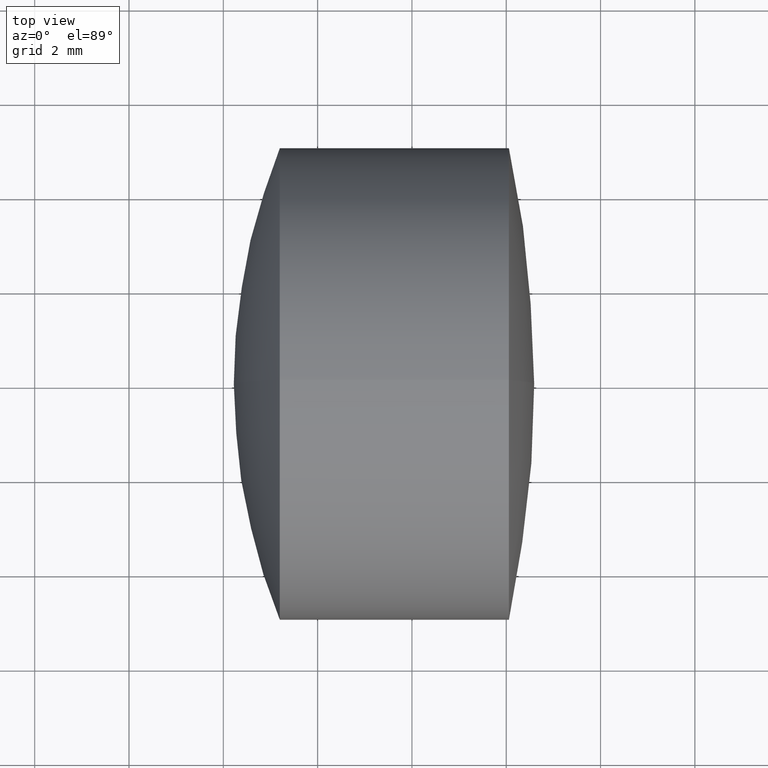
[diagram: clean part render]
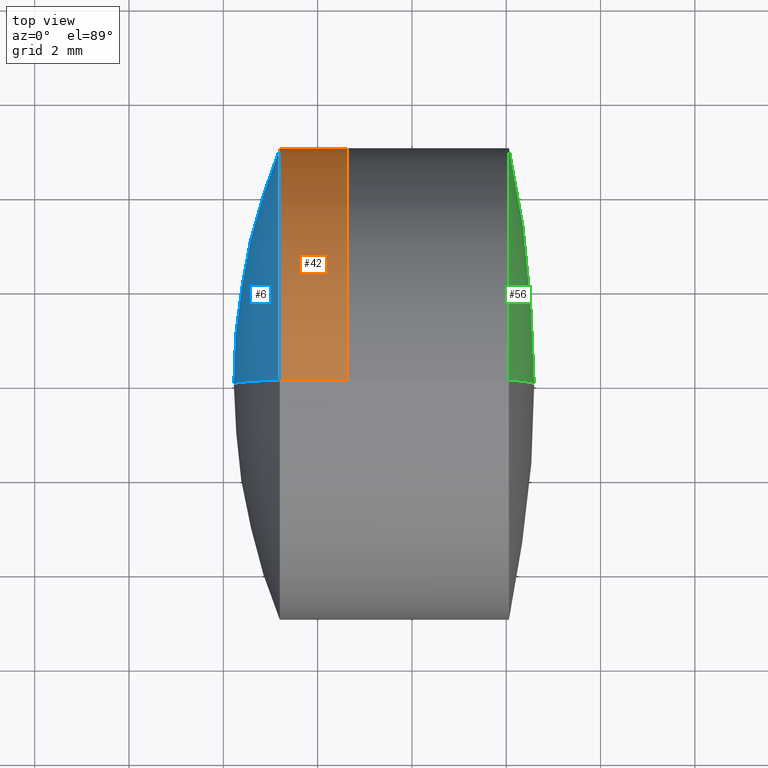
[diagram: same view with three faces highlighted in distinct colors, each labeled with its STEP entity id]
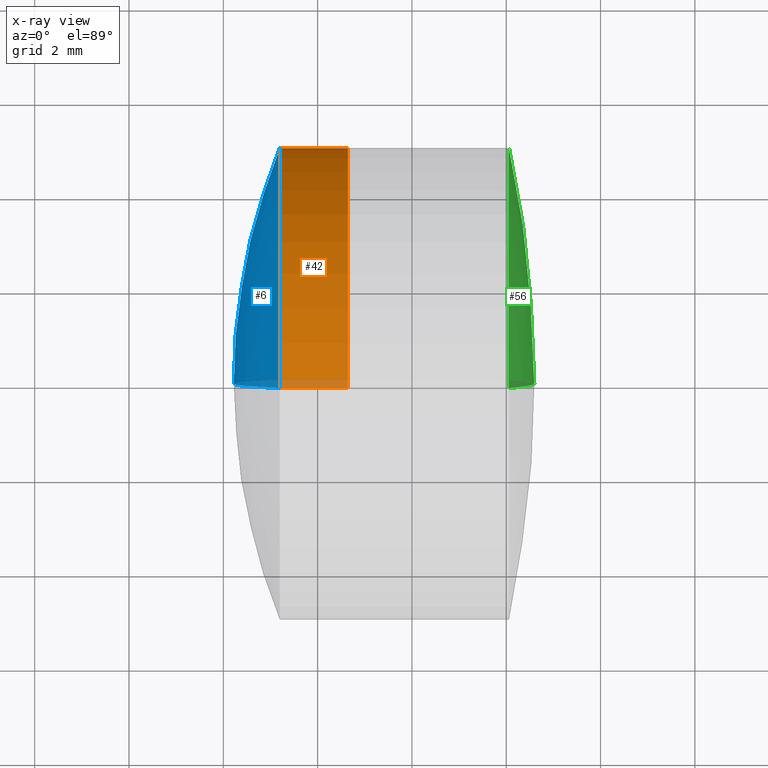
[diagram: x-ray of the same camera — body ghosted, the three highlighted faces saturated]
A machine part, top view with three faces highlighted in distinct colors.
The next image is the same camera in x-ray (body ghosted, the three faces saturated) — at least one of them is partly hidden behind the body in this view.
Their STEP definitions:

[orange] entity #42 — the highlighted cylindrical surface (partial cylindrical patch) has radius 5 mm, axis along (-1, -0, -0).
#3 = CIRCLE ( 'NONE', #311, 5.000000000000000000 ) ;
#7 = DIRECTION ( 'NONE',  ( 0.0000000000000000000, 0.0000000000000000000, 1.000000000000000000 ) ) ;
#20 = EDGE_CURVE ( 'NONE', #73, #54, #338, .T. ) ;
#27 = CARTESIAN_POINT ( 'NONE',  ( 0.6409706677806791300, 0.0000000000000000000, 0.0000000000000000000 ) ) ;
#31 = CARTESIAN_POINT ( 'NONE',  ( -0.8020328596320403000, 0.0000000000000000000, 0.0000000000000000000 ) ) ;
#35 = CARTESIAN_POINT ( 'NONE',  ( -0.8020328596320411800, 6.123233995736764300E-016, -4.999999999999999100 ) ) ;
#42 = ADVANCED_FACE ( 'NONE', ( #114 ), #166, .T. ) ;
#54 = VERTEX_POINT ( 'NONE', #35 ) ;
#73 = VERTEX_POINT ( 'NONE', #303 ) ;
#78 = DIRECTION ( 'NONE',  ( 0.0000000000000000000, 0.0000000000000000000, 1.000000000000000000 ) ) ;
#114 = FACE_OUTER_BOUND ( 'NONE', #342, .T. ) ;
#119 = DIRECTION ( 'NONE',  ( -1.000000000000000000, -0.0000000000000000000, -0.0000000000000000000 ) ) ;
#120 = EDGE_CURVE ( 'NONE', #224, #54, #3, .T. ) ;
#129 = VECTOR ( 'NONE', #215, 1000.000000000000000 ) ;
#163 = LINE ( 'NONE', #201, #312 ) ;
#165 = CARTESIAN_POINT ( 'NONE',  ( -9.702612178336682500, 6.123233995736766300E-016, -5.000000000000000000 ) ) ;
#166 = CYLINDRICAL_SURFACE ( 'NONE', #339, 5.000000000000000000 ) ;
#169 = ORIENTED_EDGE ( 'NONE', *, *, #202, .T. ) ;
#175 = DIRECTION ( 'NONE',  ( -1.000000000000000000, -0.0000000000000000000, -0.0000000000000000000 ) ) ;
#188 = DIRECTION ( 'NONE',  ( -1.000000000000000000, -0.0000000000000000000, -0.0000000000000000000 ) ) ;
#193 = CARTESIAN_POINT ( 'NONE',  ( -9.702612178336682500, 0.0000000000000000000, 0.0000000000000000000 ) ) ;
#201 = CARTESIAN_POINT ( 'NONE',  ( -9.702612178336682500, 0.0000000000000000000, 5.000000000000000000 ) ) ;
#202 = EDGE_CURVE ( 'NONE', #299, #73, #250, .T. ) ;
#205 = ORIENTED_EDGE ( 'NONE', *, *, #120, .F. ) ;
#215 = DIRECTION ( 'NONE',  ( -1.000000000000000000, -0.0000000000000000000, -0.0000000000000000000 ) ) ;
#221 = DIRECTION ( 'NONE',  ( 0.0000000000000000000, 0.0000000000000000000, 1.000000000000000000 ) ) ;
#222 = ORIENTED_EDGE ( 'NONE', *, *, #20, .T. ) ;
#224 = VERTEX_POINT ( 'NONE', #238 ) ;
#238 = CARTESIAN_POINT ( 'NONE',  ( -0.8020328596320411800, 0.0000000000000000000, 4.999999999999999100 ) ) ;
#250 = CIRCLE ( 'NONE', #293, 5.000000000000000000 ) ;
#257 = DIRECTION ( 'NONE',  ( -1.000000000000000000, -0.0000000000000000000, -0.0000000000000000000 ) ) ;
#262 = CARTESIAN_POINT ( 'NONE',  ( 0.6409706677806791300, 0.0000000000000000000, 5.000000000000000000 ) ) ;
#293 = AXIS2_PLACEMENT_3D ( 'NONE', #27, #257, #78 ) ;
#299 = VERTEX_POINT ( 'NONE', #262 ) ;
#303 = CARTESIAN_POINT ( 'NONE',  ( 0.6409706677806791300, 6.123233995736766300E-016, -5.000000000000000000 ) ) ;
#311 = AXIS2_PLACEMENT_3D ( 'NONE', #31, #188, #7 ) ;
#312 = VECTOR ( 'NONE', #175, 1000.000000000000000 ) ;
#317 = EDGE_CURVE ( 'NONE', #299, #224, #163, .T. ) ;
#326 = ORIENTED_EDGE ( 'NONE', *, *, #317, .F. ) ;
#338 = LINE ( 'NONE', #165, #129 ) ;
#339 = AXIS2_PLACEMENT_3D ( 'NONE', #193, #119, #221 ) ;
#342 = EDGE_LOOP ( 'NONE', ( #169, #222, #205, #326 ) ) ;

[blue] entity #6 — the highlighted spherical surface has radius 13.303 mm.
#3 = CIRCLE ( 'NONE', #311, 5.000000000000000000 ) ;
#4 = ORIENTED_EDGE ( 'NONE', *, *, #92, .F. ) ;
#6 = ADVANCED_FACE ( 'NONE', ( #63 ), #319, .T. ) ;
#7 = DIRECTION ( 'NONE',  ( 0.0000000000000000000, 0.0000000000000000000, 1.000000000000000000 ) ) ;
#31 = CARTESIAN_POINT ( 'NONE',  ( -0.8020328596320403000, 0.0000000000000000000, 0.0000000000000000000 ) ) ;
#33 = CIRCLE ( 'NONE', #228, 13.30299999999999900 ) ;
#34 = DIRECTION ( 'NONE',  ( 0.0000000000000000000, 0.0000000000000000000, -1.000000000000000000 ) ) ;
#35 = CARTESIAN_POINT ( 'NONE',  ( -0.8020328596320411800, 6.123233995736764300E-016, -4.999999999999999100 ) ) ;
#54 = VERTEX_POINT ( 'NONE', #35 ) ;
#57 = CARTESIAN_POINT ( 'NONE',  ( 11.52557067876908700, 0.0000000000000000000, -4.606281676806371000E-016 ) ) ;
#63 = FACE_OUTER_BOUND ( 'NONE', #142, .T. ) ;
#71 = CARTESIAN_POINT ( 'NONE',  ( 11.52557067876908700, 0.0000000000000000000, -4.606281676806371000E-016 ) ) ;
#72 = AXIS2_PLACEMENT_3D ( 'NONE', #331, #140, #306 ) ;
#92 = EDGE_CURVE ( 'NONE', #224, #285, #136, .T. ) ;
#102 = DIRECTION ( 'NONE',  ( 0.0000000000000000000, -1.224646799147353200E-016, 1.000000000000000000 ) ) ;
#120 = EDGE_CURVE ( 'NONE', #224, #54, #3, .T. ) ;
#126 = CARTESIAN_POINT ( 'NONE',  ( -1.777429321230912200, 0.0000000000000000000, 3.539456507722247700E-016 ) ) ;
#136 = CIRCLE ( 'NONE', #334, 13.30299999999999900 ) ;
#140 = DIRECTION ( 'NONE',  ( 0.0000000000000000000, 1.000000000000000000, 0.0000000000000000000 ) ) ;
#142 = EDGE_LOOP ( 'NONE', ( #261, #212, #4 ) ) ;
#188 = DIRECTION ( 'NONE',  ( -1.000000000000000000, -0.0000000000000000000, -0.0000000000000000000 ) ) ;
#211 = DIRECTION ( 'NONE',  ( 0.0000000000000000000, -1.000000000000000000, 0.0000000000000000000 ) ) ;
#212 = ORIENTED_EDGE ( 'NONE', *, *, #325, .T. ) ;
#224 = VERTEX_POINT ( 'NONE', #238 ) ;
#228 = AXIS2_PLACEMENT_3D ( 'NONE', #71, #263, #102 ) ;
#238 = CARTESIAN_POINT ( 'NONE',  ( -0.8020328596320411800, 0.0000000000000000000, 4.999999999999999100 ) ) ;
#261 = ORIENTED_EDGE ( 'NONE', *, *, #120, .T. ) ;
#263 = DIRECTION ( 'NONE',  ( -0.0000000000000000000, 1.000000000000000000, 1.224646799147353200E-016 ) ) ;
#285 = VERTEX_POINT ( 'NONE', #126 ) ;
#306 = DIRECTION ( 'NONE',  ( 0.0000000000000000000, 0.0000000000000000000, 1.000000000000000000 ) ) ;
#311 = AXIS2_PLACEMENT_3D ( 'NONE', #31, #188, #7 ) ;
#319 = SPHERICAL_SURFACE ( 'NONE', #72, 13.30299999999999900 ) ;
#325 = EDGE_CURVE ( 'NONE', #54, #285, #33, .T. ) ;
#331 = CARTESIAN_POINT ( 'NONE',  ( 11.52557067876908700, 0.0000000000000000000, -4.606281676806371000E-016 ) ) ;
#334 = AXIS2_PLACEMENT_3D ( 'NONE', #57, #211, #34 ) ;

[green] entity #56 — the highlighted spherical surface has radius 23.586 mm.
#9 = AXIS2_PLACEMENT_3D ( 'NONE', #10, #87, #328 ) ;
#10 = CARTESIAN_POINT ( 'NONE',  ( -18.99342932123091600, 0.0000000000000000000, 0.0000000000000000000 ) ) ;
#19 = ORIENTED_EDGE ( 'NONE', *, *, #345, .F. ) ;
#23 = CARTESIAN_POINT ( 'NONE',  ( -18.99342932123091600, 0.0000000000000000000, 0.0000000000000000000 ) ) ;
#26 = CIRCLE ( 'NONE', #223, 4.999999999999997300 ) ;
#44 = DIRECTION ( 'NONE',  ( 0.0000000000000000000, -1.224646799147353200E-016, 1.000000000000000000 ) ) ;
#46 = CARTESIAN_POINT ( 'NONE',  ( 4.056503346783539000, 0.0000000000000000000, 0.0000000000000000000 ) ) ;
#56 = ADVANCED_FACE ( 'NONE', ( #241 ), #84, .T. ) ;
#70 = DIRECTION ( 'NONE',  ( 0.0000000000000000000, 0.0000000000000000000, 1.000000000000000000 ) ) ;
#81 = CARTESIAN_POINT ( 'NONE',  ( 4.592570678769083000, 0.0000000000000000000, 1.444225970234473700E-015 ) ) ;
#84 = SPHERICAL_SURFACE ( 'NONE', #9, 23.58599999999999900 ) ;
#87 = DIRECTION ( 'NONE',  ( 0.0000000000000000000, 1.000000000000000000, 0.0000000000000000000 ) ) ;
#115 = CIRCLE ( 'NONE', #198, 23.58599999999999900 ) ;
#117 = CIRCLE ( 'NONE', #254, 23.58599999999999900 ) ;
#127 = CARTESIAN_POINT ( 'NONE',  ( 4.056503346783539000, 0.0000000000000000000, 4.999999999999997300 ) ) ;
#148 = CARTESIAN_POINT ( 'NONE',  ( 4.056503346783539000, 6.123233995736764300E-016, -4.999999999999997300 ) ) ;
#152 = CARTESIAN_POINT ( 'NONE',  ( -18.99342932123091600, 0.0000000000000000000, 0.0000000000000000000 ) ) ;
#161 = ORIENTED_EDGE ( 'NONE', *, *, #282, .F. ) ;
#179 = DIRECTION ( 'NONE',  ( 0.0000000000000000000, 0.0000000000000000000, -1.000000000000000000 ) ) ;
#197 = DIRECTION ( 'NONE',  ( -0.0000000000000000000, 1.000000000000000000, 1.224646799147353200E-016 ) ) ;
#198 = AXIS2_PLACEMENT_3D ( 'NONE', #152, #347, #179 ) ;
#219 = ORIENTED_EDGE ( 'NONE', *, *, #237, .T. ) ;
#223 = AXIS2_PLACEMENT_3D ( 'NONE', #46, #227, #70 ) ;
#227 = DIRECTION ( 'NONE',  ( -1.000000000000000000, -0.0000000000000000000, -0.0000000000000000000 ) ) ;
#229 = VERTEX_POINT ( 'NONE', #81 ) ;
#237 = EDGE_CURVE ( 'NONE', #229, #310, #117, .T. ) ;
#241 = FACE_OUTER_BOUND ( 'NONE', #313, .T. ) ;
#254 = AXIS2_PLACEMENT_3D ( 'NONE', #23, #197, #44 ) ;
#282 = EDGE_CURVE ( 'NONE', #340, #310, #26, .T. ) ;
#310 = VERTEX_POINT ( 'NONE', #148 ) ;
#313 = EDGE_LOOP ( 'NONE', ( #19, #219, #161 ) ) ;
#328 = DIRECTION ( 'NONE',  ( 0.0000000000000000000, 0.0000000000000000000, 1.000000000000000000 ) ) ;
#340 = VERTEX_POINT ( 'NONE', #127 ) ;
#345 = EDGE_CURVE ( 'NONE', #229, #340, #115, .T. ) ;
#347 = DIRECTION ( 'NONE',  ( 0.0000000000000000000, -1.000000000000000000, 0.0000000000000000000 ) ) ;